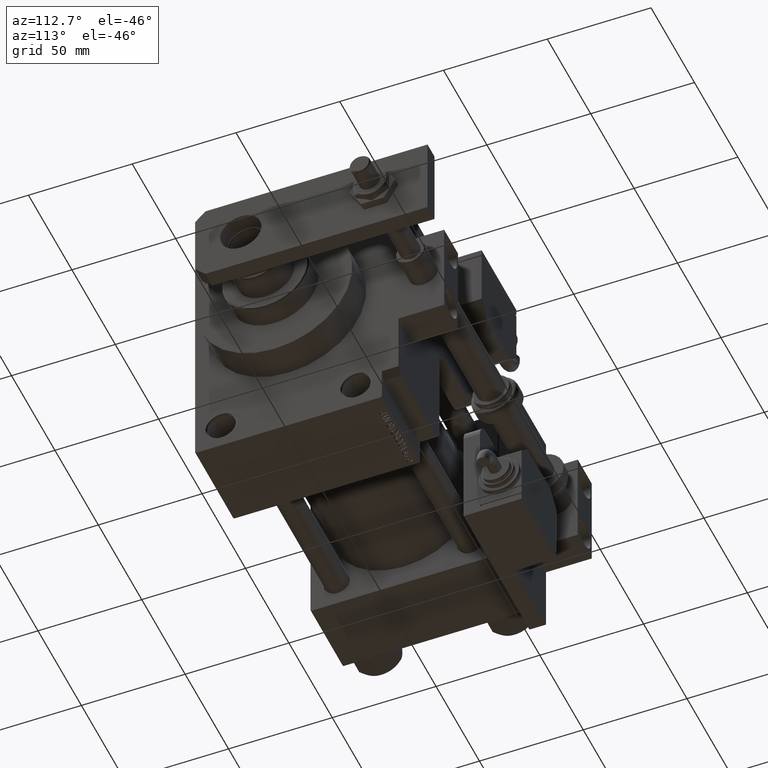
[diagram: clean part render]
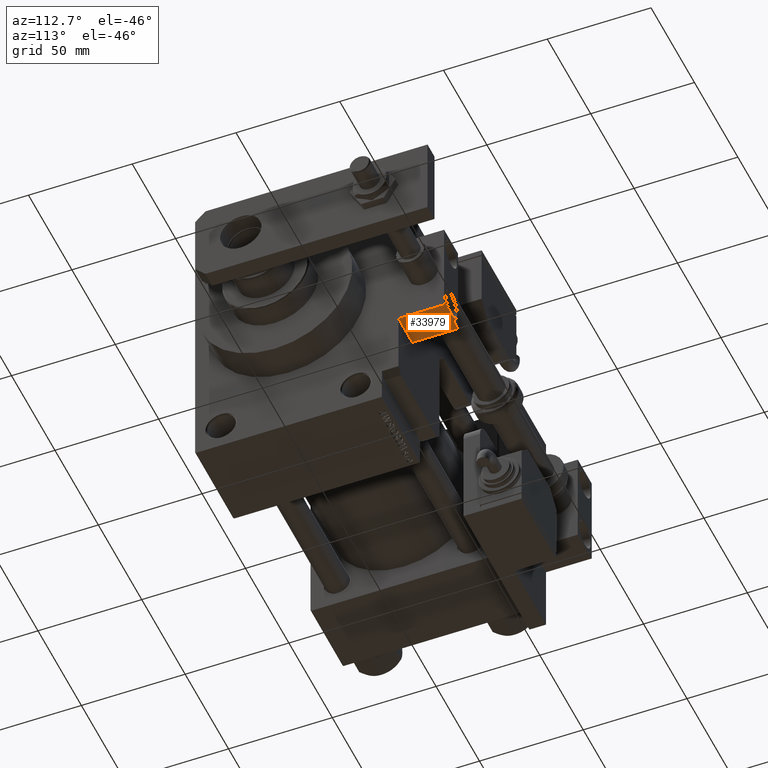
[diagram: same view with one face highlighted and labeled with its STEP entity id]
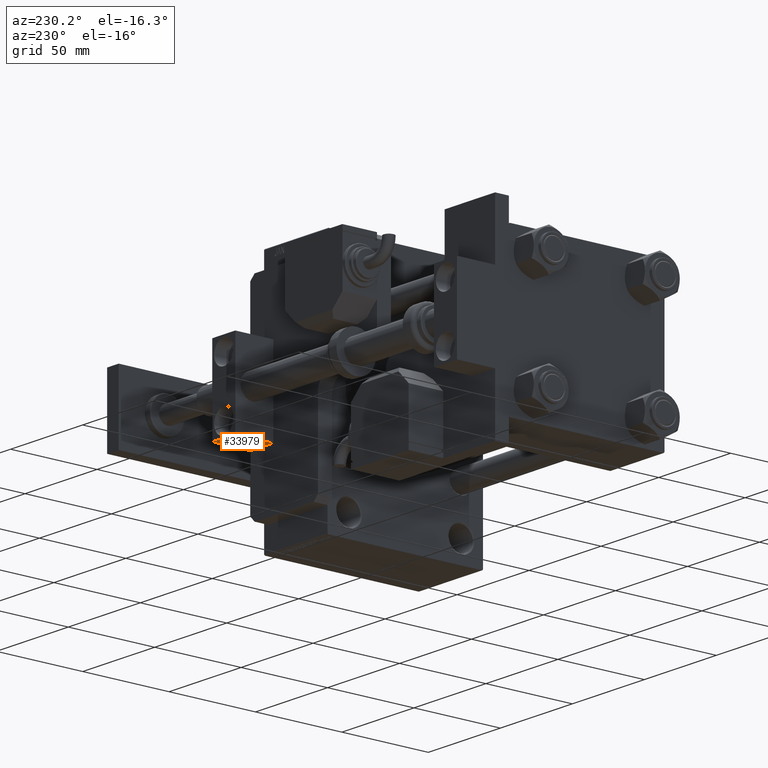
[diagram: same view with one face highlighted and labeled with its STEP entity id]
A machine part, auxiliary view. The second image highlights one B-rep face of the part: STEP entity #33979.
A second angle (auxiliary view) of the same face is appended — the face is thin or edge-on in the first view.
In plain terms, the highlighted planar face has unit normal (0, 0, -1).
Its self-contained STEP definition (entity closure, byte-faithful):
#720 = CARTESIAN_POINT ( 'NONE',  ( 23.99999999999999645, 10.99999999999999289, -16.00000000000000000 ) ) ;
#2315 = ORIENTED_EDGE ( 'NONE', *, *, #51331, .T. ) ;
#5729 = LINE ( 'NONE', #720, #53122 ) ;
#7595 = VECTOR ( 'NONE', #20401, 1000.000000000000000 ) ;
#13155 = LINE ( 'NONE', #47062, #45674 ) ;
#13665 = ORIENTED_EDGE ( 'NONE', *, *, #22445, .F. ) ;
#14201 = DIRECTION ( 'NONE',  ( 1.000000000000000000, 1.577021341797098053E-16, -0.000000000000000000 ) ) ;
#18361 = PLANE ( 'NONE',  #31620 ) ;
#18989 = VERTEX_POINT ( 'NONE', #44313 ) ;
#19941 = FACE_OUTER_BOUND ( 'NONE', #43795, .T. ) ;
#20401 = DIRECTION ( 'NONE',  ( -1.577021341797098053E-16, 1.000000000000000000, -0.000000000000000000 ) ) ;
#21787 = ORIENTED_EDGE ( 'NONE', *, *, #30366, .F. ) ;
#22024 = CARTESIAN_POINT ( 'NONE',  ( 24.00000000000000000, -11.00000000000000000, 0.000000000000000000 ) ) ;
#22445 = EDGE_CURVE ( 'NONE', #40896, #36364, #34450, .T. ) ;
#23277 = VECTOR ( 'NONE', #46969, 1000.000000000000000 ) ;
#23846 = DIRECTION ( 'NONE',  ( -1.577021341797098053E-16, 1.000000000000000000, 0.000000000000000000 ) ) ;
#24235 = VERTEX_POINT ( 'NONE', #44062 ) ;
#25397 = CARTESIAN_POINT ( 'NONE',  ( 23.99999999999999645, 10.99999999999999289, -16.00000000000000000 ) ) ;
#30366 = EDGE_CURVE ( 'NONE', #18989, #40896, #13155, .T. ) ;
#31620 = AXIS2_PLACEMENT_3D ( 'NONE', #54151, #14201, #23846 ) ;
#32903 = LINE ( 'NONE', #25397, #7595 ) ;
#33979 = ADVANCED_FACE ( 'NONE', ( #19941 ), #18361, .T. ) ;
#34450 = LINE ( 'NONE', #51162, #23277 ) ;
#36364 = VERTEX_POINT ( 'NONE', #54319 ) ;
#40896 = VERTEX_POINT ( 'NONE', #22024 ) ;
#43553 = EDGE_CURVE ( 'NONE', #18989, #24235, #32903, .T. ) ;
#43795 = EDGE_LOOP ( 'NONE', ( #13665, #21787, #45977, #2315 ) ) ;
#44062 = CARTESIAN_POINT ( 'NONE',  ( 23.99999999999999645, 10.99999999999999289, -16.00000000000000000 ) ) ;
#44313 = CARTESIAN_POINT ( 'NONE',  ( 24.00000000000000000, -11.00000000000000000, -16.00000000000000000 ) ) ;
#45674 = VECTOR ( 'NONE', #50717, 1000.000000000000000 ) ;
#45977 = ORIENTED_EDGE ( 'NONE', *, *, #43553, .T. ) ;
#46969 = DIRECTION ( 'NONE',  ( -1.577021341797098053E-16, 1.000000000000000000, -0.000000000000000000 ) ) ;
#47062 = CARTESIAN_POINT ( 'NONE',  ( 24.00000000000000000, -11.00000000000000000, -16.00000000000000000 ) ) ;
#50717 = DIRECTION ( 'NONE',  ( 0.000000000000000000, 0.000000000000000000, 1.000000000000000000 ) ) ;
#51162 = CARTESIAN_POINT ( 'NONE',  ( 23.99999999999999645, 10.99999999999999289, 0.000000000000000000 ) ) ;
#51331 = EDGE_CURVE ( 'NONE', #24235, #36364, #5729, .T. ) ;
#51623 = DIRECTION ( 'NONE',  ( 0.000000000000000000, 0.000000000000000000, 1.000000000000000000 ) ) ;
#53122 = VECTOR ( 'NONE', #51623, 1000.000000000000000 ) ;
#54151 = CARTESIAN_POINT ( 'NONE',  ( 23.99999999999999645, 10.99999999999999289, -16.00000000000000000 ) ) ;
#54319 = CARTESIAN_POINT ( 'NONE',  ( 23.99999999999999645, 10.99999999999999289, 0.000000000000000000 ) ) ;